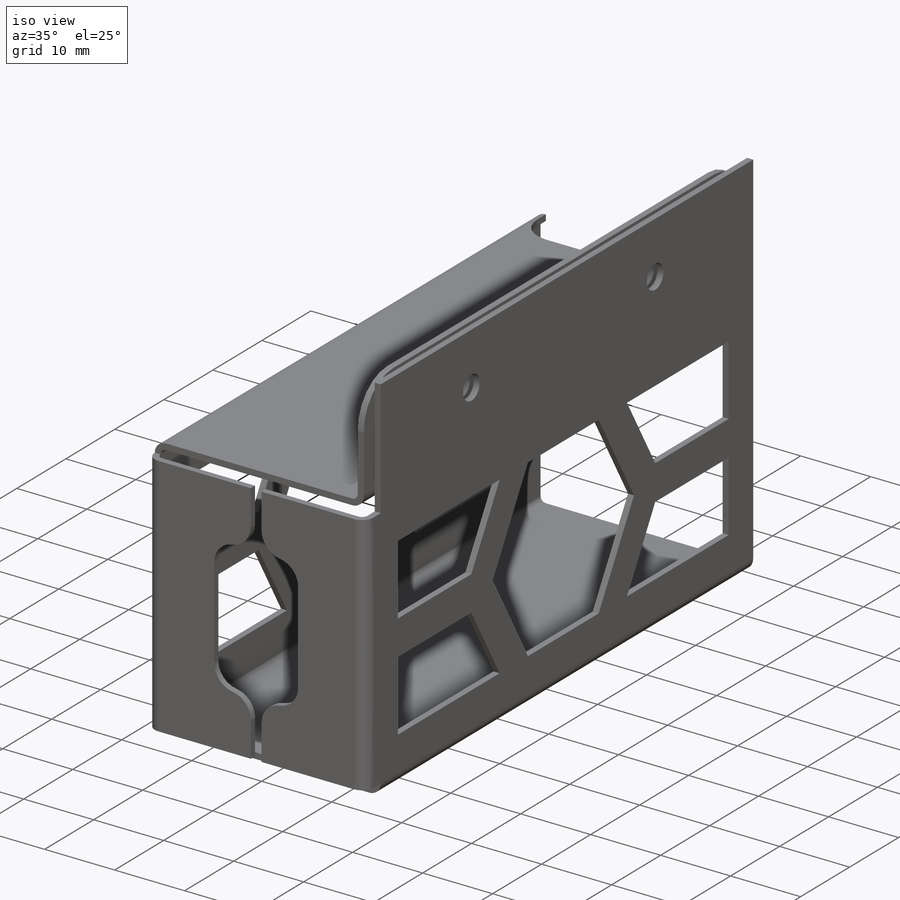
[diagram: iso view]
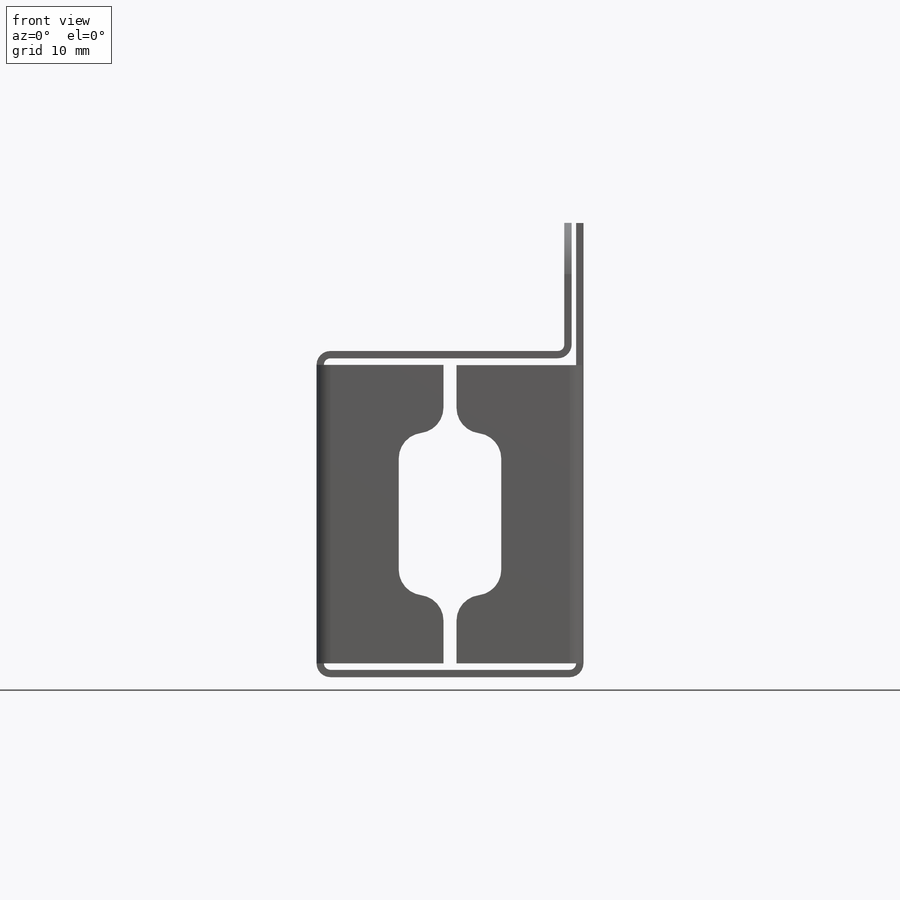
[diagram: front view]
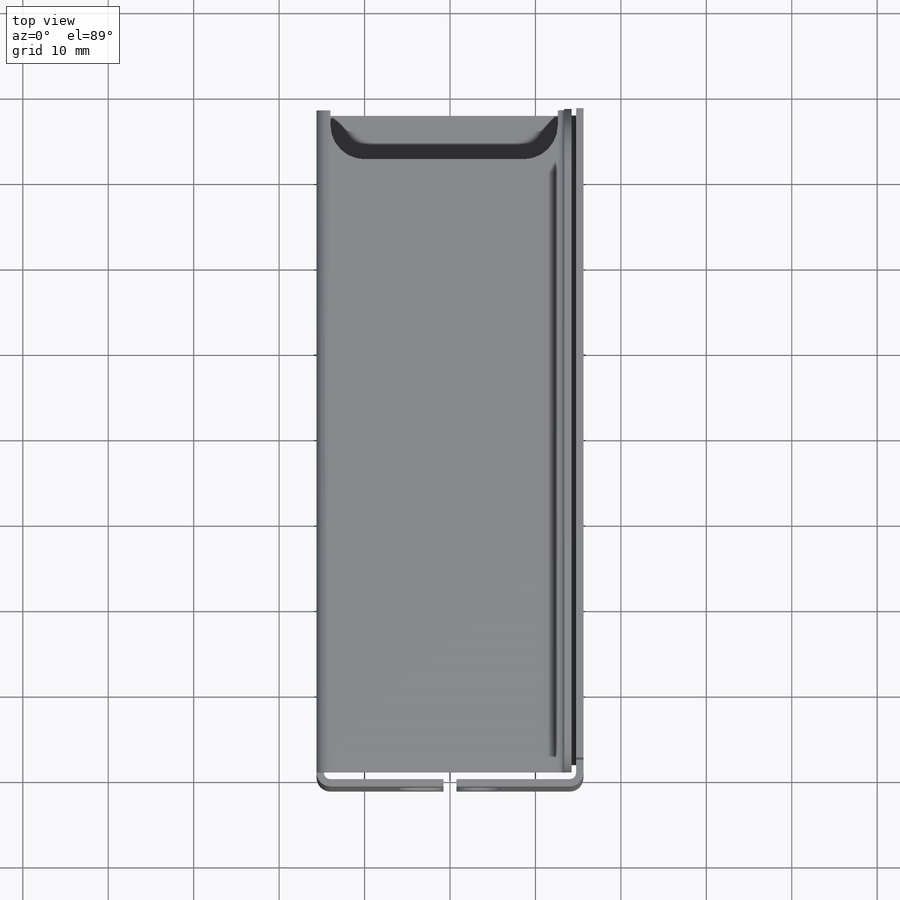
[diagram: top view]
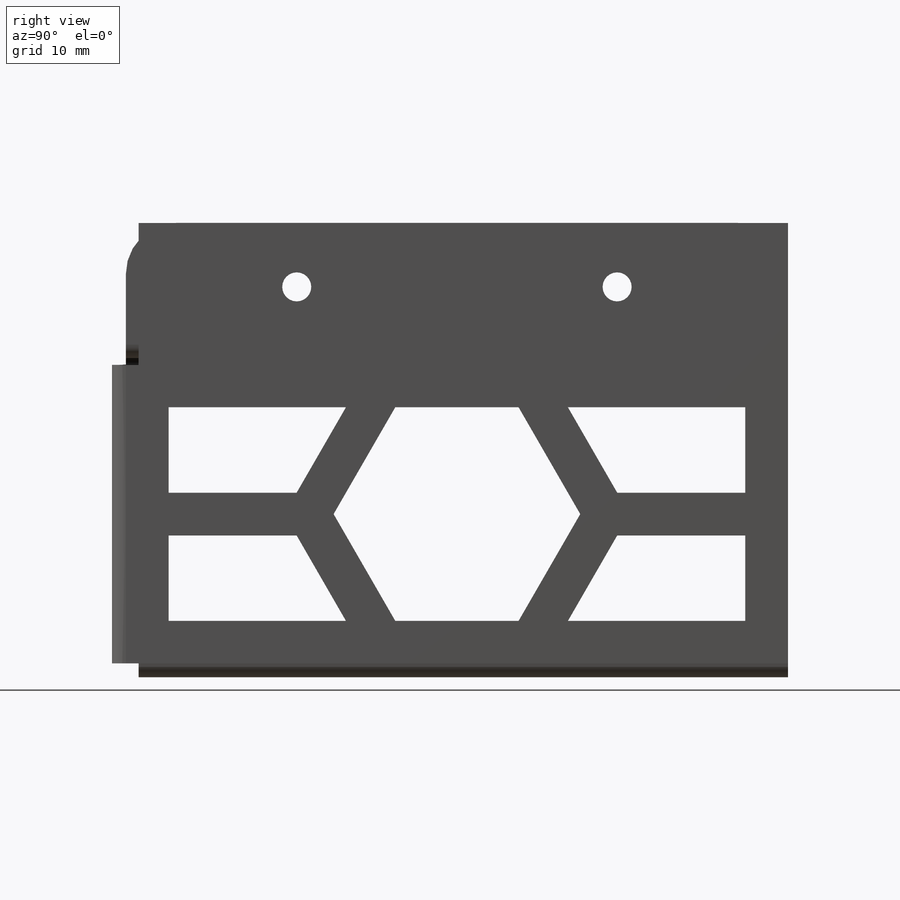
[diagram: right view]
SOLIDWORKS PART (.sldprt)
format: sldprt  version: not decoded by parser v0  size: 910,336 bytes
history: native  units: mm
features: sketch x43, sheet_metal_op x20, cut_extrude x4, fillet x4, hole x2, material x1, plane x1 + 14 further entries (+12 scaffold rows collapsed; 14 parser-record rows omitted)
feature tree (115):
  scaffold x12  (default folders/planes/origin — collapsed)
  material  "Material <not specified>"
  sketch  "Sketch1"  dims[c1.D1=76.0mm c1.D2=24.5mm c2.D1=0.762mm c2.D2=0.389 c2.D3=1.1938mm c2.D6=500.0mm]
  sheet_metal_op  "Base-Flange1"
  sketch  "Sketch10"  dims[c1.D1=0.762mm c1.D4=90.0deg c1.D5=1.0 c1.D8=0.43mm c1.D9=0.43mm c2.D1=0.762mm c2.D2=500.0mm c2.D3=0.0mm c2.D6=1.75mm c2.D7=52.3mm]
  plane  "Plane1"  Offset=0 Edge-Flange4=0
  sketch  "Sketch23"
  sheet_metal_op  "EdgeBend4"  Edge-Flange5=0
  sketch  "Sketch26"
  sheet_metal_op  "EdgeBend5"  Edge-Flange6=0
  sketch  "Sketch29"
  sheet_metal_op  "EdgeBend6"  Edge-Flange7=0
  sketch  "Sketch32"
  sheet_metal_op  "EdgeBend7"
  sketch  "Sketch40"  dims[D1=8.0mm D2=8.0mm D3=8.0mm]
  sketch  "Sketch41"  dims[D1=8.0mm D2=8.0mm D3=8.0mm]
  cut_extrude  "Cut-Extrude1"  Depth=10mm
  cut_extrude  "Cut-Extrude2"  Depth=10mm
  fillet  "Fillet1"  Radius=3mm
  fillet  "Fillet2"  Radius=3mm Edge-Flange9=0
  sketch  "Sketch44"
  sheet_metal_op  "EdgeBend9"
  hole  "M3 Clearance Hole2"  Diameter=3.4mm Depth=28.71mm
  sketch  "Sketch46"  dims[D1=20.0mm D2=20.0mm D3=7.5mm D4=7.5mm]
  sketch  "Sketch45"  dims[hole-wizard template sketch: 47 standard entries collapsed; hole parameters kept: c15.Hole Depth=28.71mm c15.D3=~14.816244mm c15.Drill Angle=118.0deg]
  fillet  "Fillet4"  Radius=6mm
  sketch  "Sketch51"
  cut_extrude  "Cut-Extrude4"  Depth=10mm
  fillet  "Fillet5"  Radius=4mm
  hole  "Fill Pattern2"  Diameter=6.928203mm
  sketch  "Sketch52"  dims[D1=77.5mm D2=5.0mm D3=5.0mm D4=2.5mm]
  cut_extrude  "Hex Pattern"  [1 undecoded]
  sketch  "Bend-Lines1"
  sketch  "Bounding-Box1"
  sheet_metal_op  "Sheet-Metal(1)"
  "Flat-Pattern(1)"
  sketch  "Bend-Lines2"
  sketch  "Bounding-Box2"
  parser-record x14  (decoder bookkeeping rows leaked as tree rows — omitted from the tree; the rows remain in map.json)
  sheet_metal_op  "Sheet-Metal(2)"
  "Flat-Pattern(1)"
  sketch  "Bend-Lines2"
  sketch  "Bounding-Box2"
  sheet_metal_op  "Sheet-Metal(5)"
  "Flat-Pattern(1)"
  sketch  "Bend-Lines2"
  sketch  "Bounding-Box2"
  sheet_metal_op  "Sheet-Metal(6)"
  "Flat-Pattern(1)"
  sketch  "Bend-Lines2"
  sketch  "Bounding-Box2"
  sheet_metal_op  "Sheet-Metal(7)"
  "Flat-Pattern(1)"
  sketch  "Bend-Lines2"
  sketch  "Bounding-Box2"
  sheet_metal_op  "Sheet-Metal(8)"
  "Flat-Pattern(1)"
  sketch  "Bend-Lines2"
  sketch  "Bounding-Box2"
  sheet_metal_op  "Sheet-Metal(11)"
  "Flat-Pattern(1)"
  sketch  "Bend-Lines2"
  sketch  "Bounding-Box2"
  sheet_metal_op  "Sheet-Metal(12)"
  "Flat-Pattern(1)"
  sketch  "Bend-Lines2"
  sketch  "Bounding-Box2"
  sheet_metal_op  "Sheet-Metal(13)"
  "Flat-Pattern(1)"
  sketch  "Bend-Lines2"
  sketch  "Bounding-Box2"
  sheet_metal_op  "Sheet-Metal(14)"
  "Flat-Pattern(1)"
  sketch  "Bend-Lines2"
  sketch  "Bounding-Box2"
  sheet_metal_op  "Sheet-Metal(16)"
  "Flat-Pattern(1)"
  sketch  "Bend-Lines2"
  sketch  "Bounding-Box2"
  sheet_metal_op  "Sheet-Metal(17)"
  "Flat-Pattern(1)"
  sketch  "Bend-Lines2"
  sketch  "Bounding-Box2"
  sheet_metal_op  "Sheet-Metal(18)"
  "Flat-Pattern(1)"
  sketch  "Bend-Lines2"
  sketch  "Bounding-Box2"
  sheet_metal_op  "Sheet-Metal(19)"
  "Flat-Pattern(1)"
  sketch  "Bend-Lines2"
  sketch  "Bounding-Box2"
decode coverage: 19 of 73 modeling features carry decoded parameters; 14 rows unclassified (native names shown)
note: ~ marks probable driven/reference dimensions
note: 1 parameter value undecoded
note: suppression state not decoded; provenance and decode notes live in map.json
